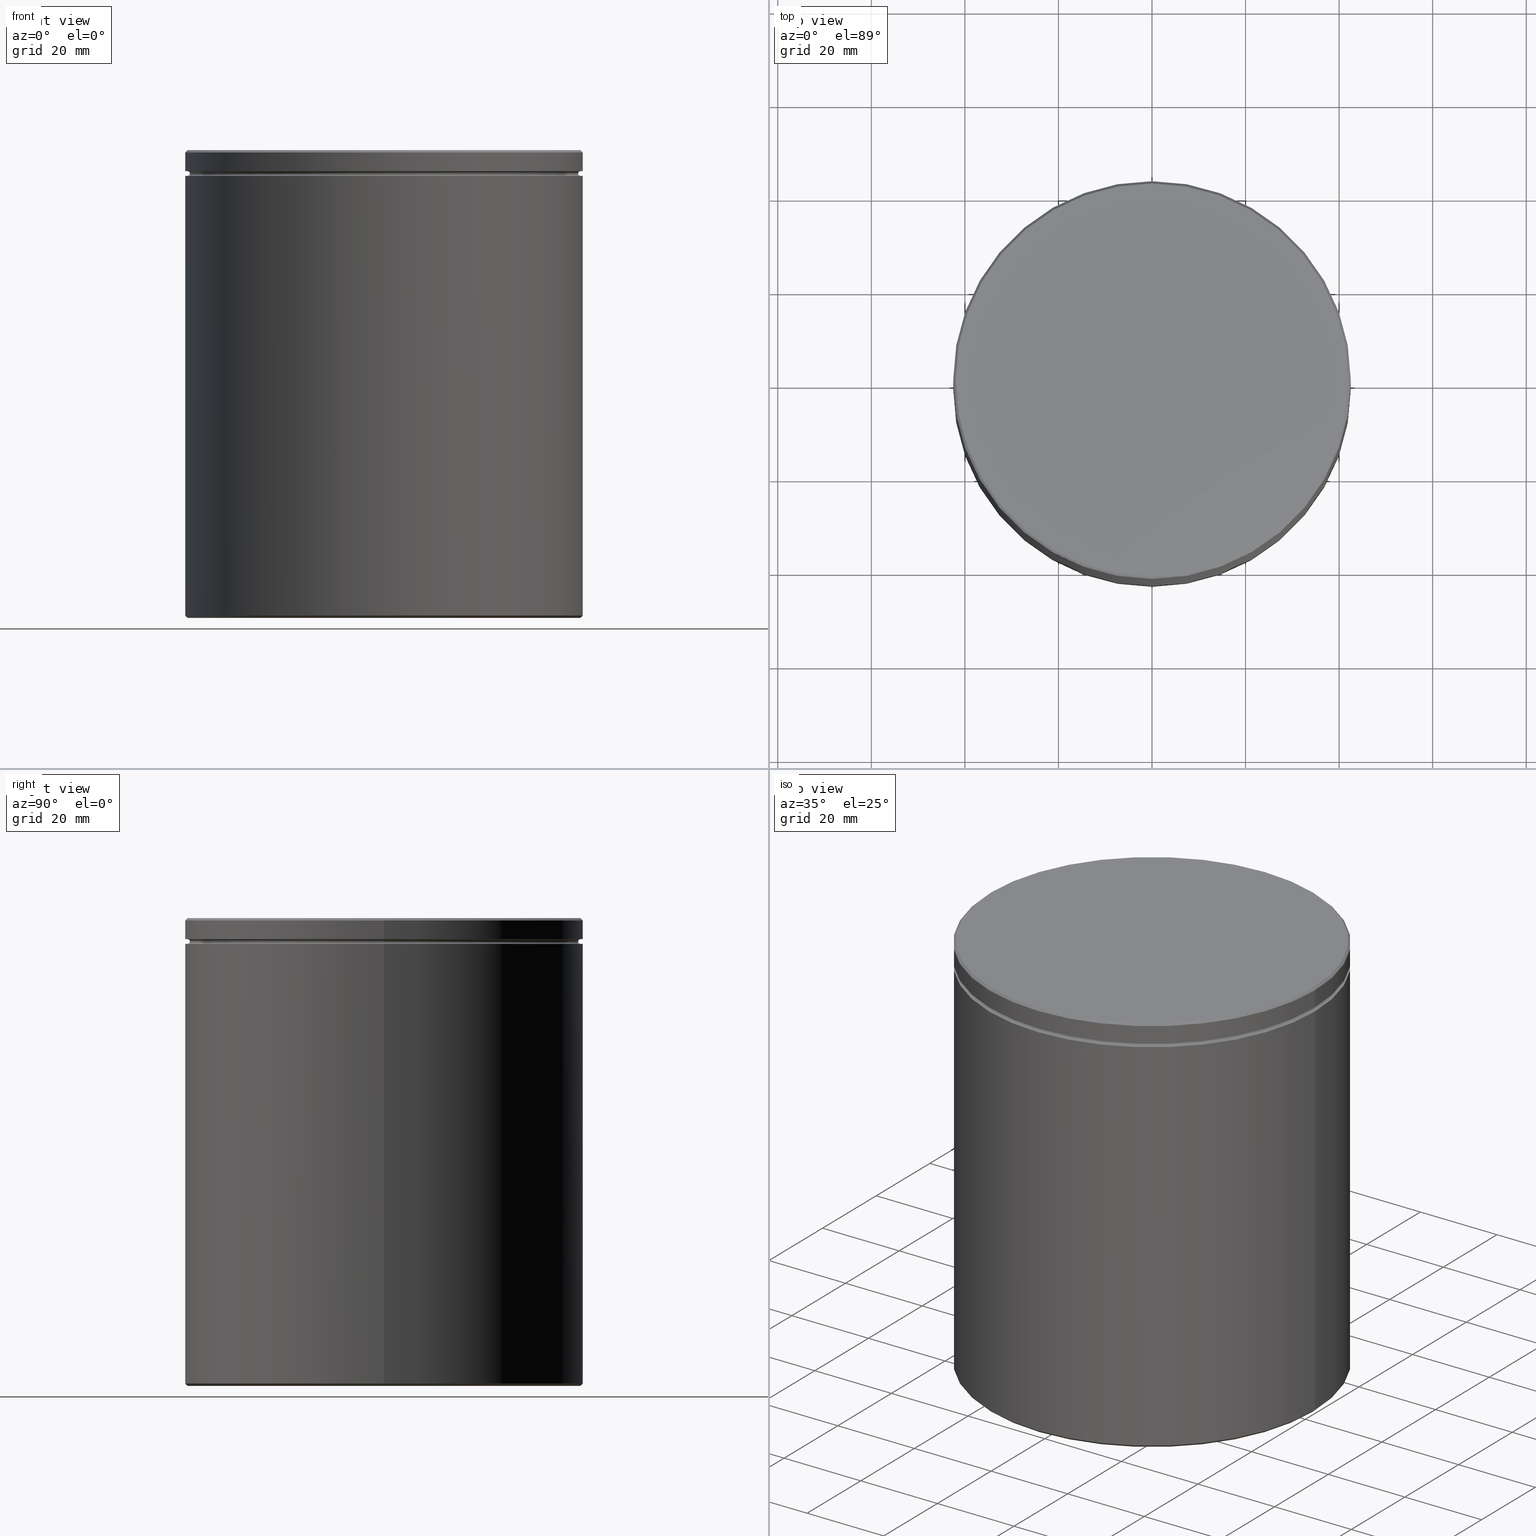
[diagram: canonical four-view strip — front | top / right | iso, engineering-drawing reading convention]
A machine part, canonical four-view strip (front | top / right | iso — engineering-drawing reading convention). The complete STEP part file that produces these views, byte-faithful:
ISO-10303-21;
HEADER;
FILE_DESCRIPTION (( 'STEP AP203' ),
    '1' );
FILE_NAME ('dbdf.STEP',
    '2024-01-02T17:53:13',
    ( '' ),
    ( '' ),
    'SwSTEP 2.0',
    'SolidWorks 2019',
    '' );
FILE_SCHEMA (( 'CONFIG_CONTROL_DESIGN' ));
ENDSEC;

DATA;
#1 = AXIS2_PLACEMENT_3D ( 'NONE', #164, #332, #74 ) ;
#2 = CONICAL_SURFACE ( 'NONE', #1, 42.50000000000000000, 0.7853981633974552734 ) ;
#3 = DIRECTION ( 'NONE',  ( 1.000000000000000000, 0.000000000000000000, 0.000000000000000000 ) ) ;
#4 = EDGE_LOOP ( 'NONE', ( #251, #79, #423, #489 ) ) ;
#5 = CARTESIAN_POINT ( 'NONE',  ( 0.000000000000000000, 41.50000000000000000, -5.500000000000000000 ) ) ;
#6 = ORIENTED_EDGE ( 'NONE', *, *, #15, .T. ) ;
#7 = CARTESIAN_POINT ( 'NONE',  ( 42.00000000000000000, 5.143516556418883322E-15, -4.500000000000000888 ) ) ;
#8 = VERTEX_POINT ( 'NONE', #397 ) ;
#9 = ADVANCED_FACE ( 'NONE', ( #349 ), #153, .F. ) ;
#10 = AXIS2_PLACEMENT_3D ( 'NONE', #52, #41, #183 ) ;
#11 = AXIS2_PLACEMENT_3D ( 'NONE', #284, #497, #61 ) ;
#12 = DIRECTION ( 'NONE',  ( -0.7071067811865524577, 0.000000000000000000, -0.7071067811865426878 ) ) ;
#13 = VERTEX_POINT ( 'NONE', #486 ) ;
#14 = CARTESIAN_POINT ( 'NONE',  ( 31.50000000000000000, 3.857637417314162689E-15, -100.0000000000000000 ) ) ;
#15 = EDGE_CURVE ( 'NONE', #50, #303, #260, .T. ) ;
#16 = CYLINDRICAL_SURFACE ( 'NONE', #45, 42.50000000000000000 ) ;
#17 = DIRECTION ( 'NONE',  ( 0.000000000000000000, 0.000000000000000000, -1.000000000000000000 ) ) ;
#18 = DIRECTION ( 'NONE',  ( -1.000000000000000000, 0.000000000000000000, 0.000000000000000000 ) ) ;
#19 = CARTESIAN_POINT ( 'NONE',  ( 0.000000000000000000, 0.000000000000000000, -99.49999999999997158 ) ) ;
#20 = CIRCLE ( 'NONE', #100, 0.5000000000000004441 ) ;
#21 = DIRECTION ( 'NONE',  ( 1.000000000000000000, 0.000000000000000000, 0.000000000000000000 ) ) ;
#22 = APPROVAL_STATUS ( 'not_yet_approved' ) ;
#23 = VERTEX_POINT ( 'NONE', #241 ) ;
#24 = AXIS2_PLACEMENT_3D ( 'NONE', #367, #103, #18 ) ;
#25 = DIRECTION ( 'NONE',  ( 0.000000000000000000, 0.000000000000000000, -1.000000000000000000 ) ) ;
#26 = CALENDAR_DATE ( 2024, 2, 1 ) ;
#27 = ORIENTED_EDGE ( 'NONE', *, *, #281, .F. ) ;
#28 = CARTESIAN_POINT ( 'NONE',  ( 0.000000000000000000, 0.000000000000000000, -4.500000000000000888 ) ) ;
#29 = ADVANCED_FACE ( 'NONE', ( #495 ), #444, .T. ) ;
#30 = COORDINATED_UNIVERSAL_TIME_OFFSET ( 1, 0, .AHEAD. ) ;
#31 = ORIENTED_EDGE ( 'NONE', *, *, #296, .F. ) ;
#32 = EDGE_CURVE ( 'NONE', #294, #339, #448, .T. ) ;
#33 = DIRECTION ( 'NONE',  ( -0.000000000000000000, -0.000000000000000000, 1.000000000000000000 ) ) ;
#34 = CIRCLE ( 'NONE', #234, 42.00000000000000000 ) ;
#35 = DIRECTION ( 'NONE',  ( -0.000000000000000000, -0.000000000000000000, 1.000000000000000000 ) ) ;
#36 = DIRECTION ( 'NONE',  ( -0.000000000000000000, -0.000000000000000000, -1.000000000000000000 ) ) ;
#37 = ORIENTED_EDGE ( 'NONE', *, *, #255, .T. ) ;
#38 = EDGE_CURVE ( 'NONE', #516, #23, #322, .T. ) ;
#39 = DIRECTION ( 'NONE',  ( -0.000000000000000000, -0.000000000000000000, 1.000000000000000000 ) ) ;
#40 = ORIENTED_EDGE ( 'NONE', *, *, #506, .F. ) ;
#41 = DIRECTION ( 'NONE',  ( -0.000000000000000000, -1.000000000000000000, -0.000000000000000000 ) ) ;
#42 = APPROVAL ( #139, 'NEUR�EN�' ) ;
#43 = DATE_AND_TIME ( #564, #283 ) ;
#44 = ORIENTED_EDGE ( 'NONE', *, *, #182, .T. ) ;
#45 = AXIS2_PLACEMENT_3D ( 'NONE', #363, #35, #21 ) ;
#46 = CARTESIAN_POINT ( 'NONE',  ( 42.00000000000000000, 0.000000000000000000, -4.999999999999999112 ) ) ;
#47 = SECURITY_CLASSIFICATION_LEVEL ( 'unclassified' ) ;
#48 = DIRECTION ( 'NONE',  ( 1.000000000000000000, 0.000000000000000000, 0.000000000000000000 ) ) ;
#49 = DIRECTION ( 'NONE',  ( 1.000000000000000000, 0.000000000000000000, 0.000000000000000000 ) ) ;
#50 = VERTEX_POINT ( 'NONE', #197 ) ;
#51 = ADVANCED_FACE ( 'NONE', ( #408 ), #361, .F. ) ;
#52 = CARTESIAN_POINT ( 'NONE',  ( -42.00000000000000000, 0.000000000000000000, -5.000000000000000888 ) ) ;
#53 = EDGE_LOOP ( 'NONE', ( #291, #178, #481, #66 ) ) ;
#54 = CIRCLE ( 'NONE', #128, 41.50000000000000000 ) ;
#55 = VECTOR ( 'NONE', #412, 1000.000000000000000 ) ;
#56 = LINE ( 'NONE', #358, #445 ) ;
#57 = DIRECTION ( 'NONE',  ( -1.000000000000000000, 0.000000000000000000, 0.000000000000000000 ) ) ;
#58 = CC_DESIGN_PERSON_AND_ORGANIZATION_ASSIGNMENT ( #161, #333, ( #110 ) ) ;
#59 = DIRECTION ( 'NONE',  ( -1.000000000000000000, 0.000000000000000000, 0.000000000000000000 ) ) ;
#60 = CARTESIAN_POINT ( 'NONE',  ( 41.99999999999999289, 5.143516556418882533E-15, 0.000000000000000000 ) ) ;
#61 = DIRECTION ( 'NONE',  ( -1.000000000000000000, 0.000000000000000000, 0.000000000000000000 ) ) ;
#62 = DIRECTION ( 'NONE',  ( -0.000000000000000000, -0.000000000000000000, -1.000000000000000000 ) ) ;
#63 = EDGE_CURVE ( 'NONE', #50, #294, #501, .T. ) ;
#64 = DIRECTION ( 'NONE',  ( 1.000000000000000000, 0.000000000000000000, 0.000000000000000000 ) ) ;
#65 = CYLINDRICAL_SURFACE ( 'NONE', #496, 31.50000000000000000 ) ;
#66 = ORIENTED_EDGE ( 'NONE', *, *, #567, .F. ) ;
#67 = AXIS2_PLACEMENT_3D ( 'NONE', #411, #450, #280 ) ;
#68 = CIRCLE ( 'NONE', #187, 42.00000000000000000 ) ;
#69 = FACE_OUTER_BOUND ( 'NONE', #421, .T. ) ;
#70 = CALENDAR_DATE ( 2024, 2, 1 ) ;
#71 = ORIENTED_EDGE ( 'NONE', *, *, #127, .T. ) ;
#72 = AXIS2_PLACEMENT_3D ( 'NONE', #337, #560, #64 ) ;
#73 = EDGE_CURVE ( 'NONE', #315, #245, #99, .T. ) ;
#74 = DIRECTION ( 'NONE',  ( 1.000000000000000000, 0.000000000000000000, 0.000000000000000000 ) ) ;
#75 = CARTESIAN_POINT ( 'NONE',  ( 0.000000000000000000, 0.000000000000000000, -5.500000000000000000 ) ) ;
#76 = EDGE_LOOP ( 'NONE', ( #118, #357, #520, #331 ) ) ;
#77 = CARTESIAN_POINT ( 'NONE',  ( 0.000000000000000000, 0.000000000000000000, -0.5000000000000004441 ) ) ;
#78 = MECHANICAL_CONTEXT ( 'NONE', #356, 'mechanical' ) ;
#79 = ORIENTED_EDGE ( 'NONE', *, *, #354, .F. ) ;
#80 = CARTESIAN_POINT ( 'NONE',  ( 0.000000000000000000, 0.000000000000000000, 0.000000000000000000 ) ) ;
#81 = APPROVAL_DATE_TIME ( #290, #171 ) ;
#82 = ORIENTED_EDGE ( 'NONE', *, *, #73, .T. ) ;
#83 = EDGE_CURVE ( 'NONE', #440, #359, #148, .T. ) ;
#84 = AXIS2_PLACEMENT_3D ( 'NONE', #244, #25, #299 ) ;
#85 = DIRECTION ( 'NONE',  ( -1.000000000000000000, 0.000000000000000000, 0.000000000000000000 ) ) ;
#86 = EDGE_LOOP ( 'NONE', ( #569, #82 ) ) ;
#87 = CARTESIAN_POINT ( 'NONE',  ( 0.000000000000000000, 0.000000000000000000, 0.000000000000000000 ) ) ;
#88 = VERTEX_POINT ( 'NONE', #366 ) ;
#89 = CARTESIAN_POINT ( 'NONE',  ( 0.000000000000000000, 0.000000000000000000, -5.000000000000000888 ) ) ;
#90 = CARTESIAN_POINT ( 'NONE',  ( 0.000000000000000000, 0.000000000000000000, -4.999999999999999112 ) ) ;
#91 = ADVANCED_FACE ( 'NONE', ( #149, #195 ), #324, .T. ) ;
#92 = DIRECTION ( 'NONE',  ( -0.000000000000000000, -0.000000000000000000, 1.000000000000000000 ) ) ;
#93 = EDGE_LOOP ( 'NONE', ( #218, #223, #136, #44 ) ) ;
#94 = DIRECTION ( 'NONE',  ( 1.000000000000000000, 0.000000000000000000, 0.000000000000000000 ) ) ;
#95 = ORIENTED_EDGE ( 'NONE', *, *, #114, .F. ) ;
#96 = DIRECTION ( 'NONE',  ( 1.000000000000000000, 0.000000000000000000, 0.000000000000000000 ) ) ;
#97 = CARTESIAN_POINT ( 'NONE',  ( 0.000000000000000000, 0.000000000000000000, -29.00000000000001066 ) ) ;
#98 = ADVANCED_FACE ( 'NONE', ( #503 ), #107, .T. ) ;
#99 = CIRCLE ( 'NONE', #292, 31.50000000000000000 ) ;
#100 = AXIS2_PLACEMENT_3D ( 'NONE', #189, #404, #464 ) ;
#101 = CIRCLE ( 'NONE', #11, 31.50000000000000000 ) ;
#102 = FACE_OUTER_BOUND ( 'NONE', #405, .T. ) ;
#103 = DIRECTION ( 'NONE',  ( 0.000000000000000000, 0.000000000000000000, -1.000000000000000000 ) ) ;
#104 = DIRECTION ( 'NONE',  ( -0.000000000000000000, -0.000000000000000000, -1.000000000000000000 ) ) ;
#105 = AXIS2_PLACEMENT_3D ( 'NONE', #282, #456, #409 ) ;
#106 = EDGE_CURVE ( 'NONE', #13, #261, #346, .T. ) ;
#107 = CYLINDRICAL_SURFACE ( 'NONE', #105, 42.50000000000000000 ) ;
#108 = DIRECTION ( 'NONE',  ( -1.000000000000000000, 0.000000000000000000, 0.000000000000000000 ) ) ;
#109 = DIRECTION ( 'NONE',  ( 0.000000000000000000, 0.000000000000000000, -1.000000000000000000 ) ) ;
#110 = PRODUCT_DEFINITION_FORMATION_WITH_SPECIFIED_SOURCE ( 'LIBOVOLN�', '', #559, .NOT_KNOWN. ) ;
#111 = DIRECTION ( 'NONE',  ( 1.000000000000000000, 0.000000000000000000, 0.000000000000000000 ) ) ;
#112 = COORDINATED_UNIVERSAL_TIME_OFFSET ( 1, 0, .AHEAD. ) ;
#113 = EDGE_LOOP ( 'NONE', ( #257, #471, #37, #552 ) ) ;
#114 = EDGE_CURVE ( 'NONE', #133, #8, #101, .T. ) ;
#115 = TOROIDAL_SURFACE ( 'NONE', #478, 42.00000000000000000, 0.5000000000000000000 ) ;
#116 = PLANE ( 'NONE',  #84 ) ;
#117 = PERSON_AND_ORGANIZATION_ROLE ( 'design_supplier' ) ;
#118 = ORIENTED_EDGE ( 'NONE', *, *, #517, .F. ) ;
#119 = CARTESIAN_POINT ( 'NONE',  ( 42.50000000000000000, 0.000000000000000000, -5.500000000000000000 ) ) ;
#120 = EDGE_LOOP ( 'NONE', ( #465, #71, #143, #174 ) ) ;
#121 = CARTESIAN_POINT ( 'NONE',  ( 0.000000000000000000, 0.000000000000000000, -5.500000000000000000 ) ) ;
#122 = APPROVAL_PERSON_ORGANIZATION ( #214, #171, #329 ) ;
#123 = DIRECTION ( 'NONE',  ( -1.000000000000000000, 0.000000000000000000, 0.000000000000000000 ) ) ;
#124 = ORIENTED_EDGE ( 'NONE', *, *, #500, .F. ) ;
#125 = ADVANCED_BREP_SHAPE_REPRESENTATION ( 'dbdf', ( #566, #368 ), #473 ) ;
#126 = CARTESIAN_POINT ( 'NONE',  ( 0.000000000000000000, 0.000000000000000000, -29.00000000000001066 ) ) ;
#127 = EDGE_CURVE ( 'NONE', #315, #133, #237, .T. ) ;
#128 = AXIS2_PLACEMENT_3D ( 'NONE', #144, #316, #96 ) ;
#129 = ORIENTED_EDGE ( 'NONE', *, *, #369, .F. ) ;
#130 = CC_DESIGN_PERSON_AND_ORGANIZATION_ASSIGNMENT ( #513, #117, ( #110 ) ) ;
#131 = AXIS2_PLACEMENT_3D ( 'NONE', #191, #147, #319 ) ;
#132 = FACE_OUTER_BOUND ( 'NONE', #272, .T. ) ;
#133 = VERTEX_POINT ( 'NONE', #14 ) ;
#134 = CARTESIAN_POINT ( 'NONE',  ( 0.000000000000000000, 0.000000000000000000, -4.999999999999999112 ) ) ;
#135 = COORDINATED_UNIVERSAL_TIME_OFFSET ( 1, 0, .AHEAD. ) ;
#136 = ORIENTED_EDGE ( 'NONE', *, *, #235, .T. ) ;
#137 = ADVANCED_FACE ( 'NONE', ( #414 ), #396, .T. ) ;
#138 = CARTESIAN_POINT ( 'NONE',  ( -31.50000000000000000, 0.000000000000000000, -29.00000000000001066 ) ) ;
#139 = APPROVAL_STATUS ( 'not_yet_approved' ) ;
#140 = ORIENTED_EDGE ( 'NONE', *, *, #15, .F. ) ;
#141 = CIRCLE ( 'NONE', #213, 31.50000000000000000 ) ;
#142 = CARTESIAN_POINT ( 'NONE',  ( -42.50000000000000000, 5.204748896376250896E-15, 0.000000000000000000 ) ) ;
#143 = ORIENTED_EDGE ( 'NONE', *, *, #114, .T. ) ;
#144 = CARTESIAN_POINT ( 'NONE',  ( 0.000000000000000000, 0.000000000000000000, -4.999999999999999112 ) ) ;
#145 = ADVANCED_FACE ( 'NONE', ( #547, #317 ), #236, .T. ) ;
#146 = ORIENTED_EDGE ( 'NONE', *, *, #83, .F. ) ;
#147 = DIRECTION ( 'NONE',  ( 0.000000000000000000, 0.000000000000000000, -1.000000000000000000 ) ) ;
#148 = CIRCLE ( 'NONE', #179, 42.00000000000000000 ) ;
#149 = FACE_OUTER_BOUND ( 'NONE', #477, .T. ) ;
#150 = DIRECTION ( 'NONE',  ( 0.000000000000000000, 0.000000000000000000, -1.000000000000000000 ) ) ;
#151 = ADVANCED_FACE ( 'NONE', ( #102 ), #16, .T. ) ;
#152 = DIRECTION ( 'NONE',  ( -1.000000000000000000, 0.000000000000000000, 0.000000000000000000 ) ) ;
#153 = TOROIDAL_SURFACE ( 'NONE', #326, 42.00000000000000000, 0.5000000000000000000 ) ;
#154 = DIRECTION ( 'NONE',  ( 1.000000000000000000, 0.000000000000000000, 0.000000000000000000 ) ) ;
#155 = CYLINDRICAL_SURFACE ( 'NONE', #463, 42.50000000000000000 ) ;
#156 = ADVANCED_FACE ( 'NONE', ( #424 ), #248, .T. ) ;
#157 = PERSON_AND_ORGANIZATION ( #457, #173 ) ;
#158 = CIRCLE ( 'NONE', #340, 42.00000000000000000 ) ;
#159 = CARTESIAN_POINT ( 'NONE',  ( 42.50000000000000000, 0.000000000000000000, -4.500000000000000888 ) ) ;
#160 = APPLICATION_CONTEXT ( 'configuration controlled 3d designs of mechanical parts and assemblies' ) ;
#161 = PERSON_AND_ORGANIZATION ( #457, #173 ) ;
#162 = ORIENTED_EDGE ( 'NONE', *, *, #537, .F. ) ;
#163 = CIRCLE ( 'NONE', #240, 0.5000000000000004441 ) ;
#164 = CARTESIAN_POINT ( 'NONE',  ( 0.000000000000000000, 0.000000000000000000, -99.49999999999997158 ) ) ;
#165 =( LENGTH_UNIT ( ) NAMED_UNIT ( * ) SI_UNIT ( .MILLI., .METRE. ) );
#166 = ORIENTED_EDGE ( 'NONE', *, *, #443, .F. ) ;
#167 = CC_DESIGN_SECURITY_CLASSIFICATION ( #531, ( #110 ) ) ;
#168 = CARTESIAN_POINT ( 'NONE',  ( 0.000000000000000000, 0.000000000000000000, -99.49999999999997158 ) ) ;
#169 = CARTESIAN_POINT ( 'NONE',  ( 0.000000000000000000, 0.000000000000000000, 0.000000000000000000 ) ) ;
#170 = EDGE_LOOP ( 'NONE', ( #31, #347, #557, #146 ) ) ;
#171 = APPROVAL ( #22, 'NEUR�EN�' ) ;
#172 = DIRECTION ( 'NONE',  ( -0.000000000000000000, -0.000000000000000000, -1.000000000000000000 ) ) ;
#173 = ORGANIZATION ( 'NEUR�EN�', 'NEUR�EN�', '' ) ;
#174 = ORIENTED_EDGE ( 'NONE', *, *, #378, .F. ) ;
#175 = AXIS2_PLACEMENT_3D ( 'NONE', #469, #212, #203 ) ;
#176 = DIRECTION ( 'NONE',  ( 1.000000000000000000, 0.000000000000000000, 0.000000000000000000 ) ) ;
#177 = CIRCLE ( 'NONE', #247, 42.50000000000000000 ) ;
#178 = ORIENTED_EDGE ( 'NONE', *, *, #400, .F. ) ;
#179 = AXIS2_PLACEMENT_3D ( 'NONE', #449, #193, #370 ) ;
#180 = DIRECTION ( 'NONE',  ( -1.000000000000000000, 0.000000000000000000, 0.000000000000000000 ) ) ;
#181 = EDGE_LOOP ( 'NONE', ( #27, #95 ) ) ;
#182 = EDGE_CURVE ( 'NONE', #23, #334, #498, .T. ) ;
#183 = DIRECTION ( 'NONE',  ( 0.000000000000000000, 0.000000000000000000, -1.000000000000000000 ) ) ;
#184 = ORIENTED_EDGE ( 'NONE', *, *, #243, .T. ) ;
#185 = DIRECTION ( 'NONE',  ( -0.000000000000000000, -0.000000000000000000, 1.000000000000000000 ) ) ;
#186 = ORIENTED_EDGE ( 'NONE', *, *, #221, .T. ) ;
#187 = AXIS2_PLACEMENT_3D ( 'NONE', #377, #252, #422 ) ;
#188 = VECTOR ( 'NONE', #33, 1000.000000000000000 ) ;
#189 = CARTESIAN_POINT ( 'NONE',  ( -42.00000000000000000, 5.143516556418883322E-15, -4.999999999999999112 ) ) ;
#190 = ORIENTED_EDGE ( 'NONE', *, *, #238, .F. ) ;
#191 = CARTESIAN_POINT ( 'NONE',  ( 0.000000000000000000, 42.50000000000000000, -4.500000000000000888 ) ) ;
#192 = CC_DESIGN_APPROVAL ( #263, ( #110 ) ) ;
#193 = DIRECTION ( 'NONE',  ( -0.000000000000000000, -0.000000000000000000, 1.000000000000000000 ) ) ;
#194 = CIRCLE ( 'NONE', #502, 41.50000000000000000 ) ;
#195 = FACE_BOUND ( 'NONE', #181, .T. ) ;
#196 = ADVANCED_FACE ( 'NONE', ( #249 ), #116, .T. ) ;
#197 = CARTESIAN_POINT ( 'NONE',  ( 42.50000000000000000, 0.000000000000000000, -99.49999999999997158 ) ) ;
#198 = DIRECTION ( 'NONE',  ( -0.000000000000000000, -0.000000000000000000, 1.000000000000000000 ) ) ;
#199 = AXIS2_PLACEMENT_3D ( 'NONE', #239, #17, #499 ) ;
#200 = TOROIDAL_SURFACE ( 'NONE', #233, 42.00000000000000000, 0.5000000000000000000 ) ;
#201 = PRODUCT_DEFINITION ( 'NEZN�M�', '', #110, #226 ) ;
#202 = VECTOR ( 'NONE', #242, 1000.000000000000000 ) ;
#203 = DIRECTION ( 'NONE',  ( -1.000000000000000000, 0.000000000000000000, 0.000000000000000000 ) ) ;
#204 = DATE_TIME_ROLE ( 'creation_date' ) ;
#205 = ORIENTED_EDGE ( 'NONE', *, *, #558, .F. ) ;
#206 = CARTESIAN_POINT ( 'NONE',  ( 0.000000000000000000, 0.000000000000000000, 0.000000000000000000 ) ) ;
#207 = PERSON_AND_ORGANIZATION_ROLE ( 'design_owner' ) ;
#208 = VERTEX_POINT ( 'NONE', #159 ) ;
#209 = LOCAL_TIME ( 18, 53, 13.00000000000000000, #112 ) ;
#210 = DIRECTION ( 'NONE',  ( -0.000000000000000000, -0.000000000000000000, 1.000000000000000000 ) ) ;
#211 = CIRCLE ( 'NONE', #301, 41.99999999999999289 ) ;
#212 = DIRECTION ( 'NONE',  ( 0.000000000000000000, 0.000000000000000000, -1.000000000000000000 ) ) ;
#213 = AXIS2_PLACEMENT_3D ( 'NONE', #553, #472, #335 ) ;
#214 = PERSON_AND_ORGANIZATION ( #457, #173 ) ;
#215 = EDGE_LOOP ( 'NONE', ( #510, #274, #514, #166 ) ) ;
#216 = ADVANCED_FACE ( 'NONE', ( #69 ), #2, .T. ) ;
#217 = CARTESIAN_POINT ( 'NONE',  ( -42.50000000000000000, 5.204748896376250896E-15, -99.49999999999997158 ) ) ;
#218 = ORIENTED_EDGE ( 'NONE', *, *, #429, .F. ) ;
#219 = PLANE ( 'NONE',  #466 ) ;
#220 = ORIENTED_EDGE ( 'NONE', *, *, #537, .T. ) ;
#221 = EDGE_CURVE ( 'NONE', #261, #50, #458, .T. ) ;
#222 = CYLINDRICAL_SURFACE ( 'NONE', #394, 42.50000000000000000 ) ;
#223 = ORIENTED_EDGE ( 'NONE', *, *, #327, .T. ) ;
#224 = VECTOR ( 'NONE', #62, 1000.000000000000000 ) ;
#225 = FACE_OUTER_BOUND ( 'NONE', #170, .T. ) ;
#226 = DESIGN_CONTEXT ( 'detailed design', #160, 'design' ) ;
#227 = PERSON_AND_ORGANIZATION ( #457, #173 ) ;
#228 = EDGE_LOOP ( 'NONE', ( #300, #426 ) ) ;
#229 = DIRECTION ( 'NONE',  ( 0.000000000000000000, 0.000000000000000000, -1.000000000000000000 ) ) ;
#230 = ORIENTED_EDGE ( 'NONE', *, *, #451, .F. ) ;
#231 = CARTESIAN_POINT ( 'NONE',  ( -42.50000000000000000, 5.204748896376250896E-15, -4.500000000000000888 ) ) ;
#232 = ORIENTED_EDGE ( 'NONE', *, *, #527, .T. ) ;
#233 = AXIS2_PLACEMENT_3D ( 'NONE', #89, #563, #342 ) ;
#234 = AXIS2_PLACEMENT_3D ( 'NONE', #121, #293, #427 ) ;
#235 = EDGE_CURVE ( 'NONE', #208, #23, #474, .T. ) ;
#236 = PLANE ( 'NONE',  #131 ) ;
#237 = LINE ( 'NONE', #540, #224 ) ;
#238 = EDGE_CURVE ( 'NONE', #303, #50, #318, .T. ) ;
#239 = CARTESIAN_POINT ( 'NONE',  ( 0.000000000000000000, 42.50000000000000000, -100.0000000000000000 ) ) ;
#240 = AXIS2_PLACEMENT_3D ( 'NONE', #46, #270, #229 ) ;
#241 = CARTESIAN_POINT ( 'NONE',  ( 42.50000000000000000, 0.000000000000000000, -0.5000000000000004441 ) ) ;
#242 = DIRECTION ( 'NONE',  ( 0.7071067811865524577, 8.659560562354994488E-17, -0.7071067811865426878 ) ) ;
#243 = EDGE_CURVE ( 'NONE', #380, #88, #34, .T. ) ;
#244 = CARTESIAN_POINT ( 'NONE',  ( 0.000000000000000000, 0.000000000000000000, -29.00000000000001066 ) ) ;
#245 = VERTEX_POINT ( 'NONE', #330 ) ;
#246 = VECTOR ( 'NONE', #505, 1000.000000000000000 ) ;
#247 = AXIS2_PLACEMENT_3D ( 'NONE', #375, #551, #416 ) ;
#248 = CONICAL_SURFACE ( 'NONE', #175, 41.99999999999999289, 0.7853981633974552734 ) ;
#249 = FACE_OUTER_BOUND ( 'NONE', #86, .T. ) ;
#250 = DATE_AND_TIME ( #287, #288 ) ;
#251 = ORIENTED_EDGE ( 'NONE', *, *, #127, .F. ) ;
#252 = DIRECTION ( 'NONE',  ( -0.000000000000000000, -0.000000000000000000, 1.000000000000000000 ) ) ;
#253 = ORIENTED_EDGE ( 'NONE', *, *, #182, .F. ) ;
#254 = FACE_OUTER_BOUND ( 'NONE', #215, .T. ) ;
#255 = EDGE_CURVE ( 'NONE', #334, #23, #504, .T. ) ;
#256 = PERSON_AND_ORGANIZATION ( #457, #173 ) ;
#257 = ORIENTED_EDGE ( 'NONE', *, *, #369, .T. ) ;
#258 = AXIS2_PLACEMENT_3D ( 'NONE', #87, #390, #94 ) ;
#259 = DIRECTION ( 'NONE',  ( -1.224646799147353207E-16, 1.000000000000000000, 0.000000000000000000 ) ) ;
#260 = CIRCLE ( 'NONE', #373, 42.50000000000000000 ) ;
#261 = VERTEX_POINT ( 'NONE', #550 ) ;
#262 = ORIENTED_EDGE ( 'NONE', *, *, #506, .T. ) ;
#263 = APPROVAL ( #509, 'NEUR�EN�' ) ;
#264 = CARTESIAN_POINT ( 'NONE',  ( -42.00000000000000000, 0.000000000000000000, -4.500000000000000888 ) ) ;
#265 = ORIENTED_EDGE ( 'NONE', *, *, #106, .T. ) ;
#266 = AXIS2_PLACEMENT_3D ( 'NONE', #437, #433, #176 ) ;
#267 = DIRECTION ( 'NONE',  ( 1.000000000000000000, 0.000000000000000000, 0.000000000000000000 ) ) ;
#268 = LOCAL_TIME ( 18, 53, 13.00000000000000000, #135 ) ;
#269 = ORIENTED_EDGE ( 'NONE', *, *, #32, .F. ) ;
#270 = DIRECTION ( 'NONE',  ( 0.000000000000000000, -1.000000000000000000, 0.000000000000000000 ) ) ;
#271 = UNCERTAINTY_MEASURE_WITH_UNIT (LENGTH_MEASURE( 1.000000000000000082E-05 ), #165, 'distance_accuracy_value', 'NONE');
#272 = EDGE_LOOP ( 'NONE', ( #383, #565 ) ) ;
#273 = CARTESIAN_POINT ( 'NONE',  ( 0.000000000000000000, 0.000000000000000000, -4.999999999999999112 ) ) ;
#274 = ORIENTED_EDGE ( 'NONE', *, *, #296, .T. ) ;
#275 = ADVANCED_FACE ( 'NONE', ( #556 ), #155, .T. ) ;
#276 = LINE ( 'NONE', #446, #279 ) ;
#277 = AXIS2_PLACEMENT_3D ( 'NONE', #97, #104, #541 ) ;
#278 = CARTESIAN_POINT ( 'NONE',  ( 0.000000000000000000, 0.000000000000000000, -99.49999999999997158 ) ) ;
#279 = VECTOR ( 'NONE', #12, 1000.000000000000000 ) ;
#280 = DIRECTION ( 'NONE',  ( 1.000000000000000000, 0.000000000000000000, 0.000000000000000000 ) ) ;
#281 = EDGE_CURVE ( 'NONE', #8, #133, #141, .T. ) ;
#282 = CARTESIAN_POINT ( 'NONE',  ( 0.000000000000000000, 0.000000000000000000, 0.000000000000000000 ) ) ;
#283 = LOCAL_TIME ( 18, 53, 13.00000000000000000, #310 ) ;
#284 = CARTESIAN_POINT ( 'NONE',  ( 0.000000000000000000, 0.000000000000000000, -100.0000000000000000 ) ) ;
#285 = CARTESIAN_POINT ( 'NONE',  ( 42.50000000000000000, 0.000000000000000000, 0.000000000000000000 ) ) ;
#286 = DIRECTION ( 'NONE',  ( -0.000000000000000000, -0.000000000000000000, 1.000000000000000000 ) ) ;
#287 = CALENDAR_DATE ( 2024, 2, 1 ) ;
#288 = LOCAL_TIME ( 18, 53, 13.00000000000000000, #30 ) ;
#289 = DIRECTION ( 'NONE',  ( 0.000000000000000000, 0.000000000000000000, -1.000000000000000000 ) ) ;
#290 = DATE_AND_TIME ( #26, #493 ) ;
#291 = ORIENTED_EDGE ( 'NONE', *, *, #542, .F. ) ;
#292 = AXIS2_PLACEMENT_3D ( 'NONE', #544, #447, #152 ) ;
#293 = DIRECTION ( 'NONE',  ( 0.000000000000000000, 0.000000000000000000, -1.000000000000000000 ) ) ;
#294 = VERTEX_POINT ( 'NONE', #119 ) ;
#295 = CC_DESIGN_APPROVAL ( #42, ( #531 ) ) ;
#296 = EDGE_CURVE ( 'NONE', #428, #440, #406, .T. ) ;
#297 = DIRECTION ( 'NONE',  ( -0.000000000000000000, -0.000000000000000000, 1.000000000000000000 ) ) ;
#298 = ORIENTED_EDGE ( 'NONE', *, *, #63, .F. ) ;
#299 = DIRECTION ( 'NONE',  ( -1.000000000000000000, 0.000000000000000000, -0.000000000000000000 ) ) ;
#300 = ORIENTED_EDGE ( 'NONE', *, *, #32, .T. ) ;
#301 = AXIS2_PLACEMENT_3D ( 'NONE', #348, #185, #355 ) ;
#302 = CARTESIAN_POINT ( 'NONE',  ( 42.00000000000000000, 0.000000000000000000, -5.500000000000000000 ) ) ;
#303 = VERTEX_POINT ( 'NONE', #217 ) ;
#304 = EDGE_CURVE ( 'NONE', #530, #516, #455, .T. ) ;
#305 = FACE_OUTER_BOUND ( 'NONE', #53, .T. ) ;
#306 = ORIENTED_EDGE ( 'NONE', *, *, #451, .T. ) ;
#307 = PRODUCT_DEFINITION_SHAPE ( 'NONE', 'NONE',  #201 ) ;
#308 = DIRECTION ( 'NONE',  ( -0.000000000000000000, -0.000000000000000000, 1.000000000000000000 ) ) ;
#309 = DIRECTION ( 'NONE',  ( -0.000000000000000000, -0.000000000000000000, 1.000000000000000000 ) ) ;
#310 = COORDINATED_UNIVERSAL_TIME_OFFSET ( 1, 0, .AHEAD. ) ;
#311 = ORIENTED_EDGE ( 'NONE', *, *, #567, .T. ) ;
#312 = ADVANCED_FACE ( 'NONE', ( #254 ), #479, .F. ) ;
#313 = DIRECTION ( 'NONE',  ( -0.000000000000000000, -0.000000000000000000, 1.000000000000000000 ) ) ;
#314 = DATE_AND_TIME ( #529, #268 ) ;
#315 = VERTEX_POINT ( 'NONE', #328 ) ;
#316 = DIRECTION ( 'NONE',  ( -0.000000000000000000, -0.000000000000000000, 1.000000000000000000 ) ) ;
#317 = FACE_OUTER_BOUND ( 'NONE', #533, .T. ) ;
#318 = CIRCLE ( 'NONE', #321, 42.50000000000000000 ) ;
#319 = DIRECTION ( 'NONE',  ( -1.000000000000000000, 0.000000000000000000, -0.000000000000000000 ) ) ;
#320 = EDGE_CURVE ( 'NONE', #359, #440, #68, .T. ) ;
#321 = AXIS2_PLACEMENT_3D ( 'NONE', #168, #286, #108 ) ;
#322 = LINE ( 'NONE', #60, #202 ) ;
#323 = DIRECTION ( 'NONE',  ( -0.000000000000000000, -0.000000000000000000, 1.000000000000000000 ) ) ;
#324 = PLANE ( 'NONE',  #199 ) ;
#325 = CIRCLE ( 'NONE', #403, 41.99999999999996447 ) ;
#326 = AXIS2_PLACEMENT_3D ( 'NONE', #90, #438, #48 ) ;
#327 = EDGE_CURVE ( 'NONE', #399, #208, #362, .T. ) ;
#328 = CARTESIAN_POINT ( 'NONE',  ( 31.50000000000000000, 3.857637417314162689E-15, -29.00000000000001066 ) ) ;
#329 = APPROVAL_ROLE ( '' ) ;
#330 = CARTESIAN_POINT ( 'NONE',  ( -31.50000000000000000, 0.000000000000000000, -29.00000000000001066 ) ) ;
#331 = ORIENTED_EDGE ( 'NONE', *, *, #475, .F. ) ;
#332 = DIRECTION ( 'NONE',  ( -0.000000000000000000, -0.000000000000000000, 1.000000000000000000 ) ) ;
#333 = PERSON_AND_ORGANIZATION_ROLE ( 'creator' ) ;
#334 = VERTEX_POINT ( 'NONE', #525 ) ;
#335 = DIRECTION ( 'NONE',  ( -1.000000000000000000, 0.000000000000000000, 0.000000000000000000 ) ) ;
#336 = ORIENTED_EDGE ( 'NONE', *, *, #527, .F. ) ;
#337 = CARTESIAN_POINT ( 'NONE',  ( 0.000000000000000000, 0.000000000000000000, -0.5000000000000004441 ) ) ;
#338 = APPLICATION_PROTOCOL_DEFINITION ( 'international standard', 'config_control_design', 1994, #356 ) ;
#339 = VERTEX_POINT ( 'NONE', #490 ) ;
#340 = AXIS2_PLACEMENT_3D ( 'NONE', #75, #109, #561 ) ;
#341 = ADVANCED_FACE ( 'NONE', ( #305 ), #115, .F. ) ;
#342 = DIRECTION ( 'NONE',  ( -1.000000000000000000, 0.000000000000000000, 0.000000000000000000 ) ) ;
#343 = AXIS2_PLACEMENT_3D ( 'NONE', #77, #515, #415 ) ;
#344 = VECTOR ( 'NONE', #172, 1000.000000000000000 ) ;
#345 = CARTESIAN_POINT ( 'NONE',  ( 0.000000000000000000, 0.000000000000000000, 0.000000000000000000 ) ) ;
#346 = CIRCLE ( 'NONE', #393, 41.99999999999996447 ) ;
#347 = ORIENTED_EDGE ( 'NONE', *, *, #400, .T. ) ;
#348 = CARTESIAN_POINT ( 'NONE',  ( 0.000000000000000000, 0.000000000000000000, 0.000000000000000000 ) ) ;
#349 = FACE_OUTER_BOUND ( 'NONE', #76, .T. ) ;
#350 = APPROVAL_PERSON_ORGANIZATION ( #227, #42, #488 ) ;
#351 = LINE ( 'NONE', #441, #372 ) ;
#352 = SHAPE_DEFINITION_REPRESENTATION ( #307, #125 ) ;
#353 = ORIENTED_EDGE ( 'NONE', *, *, #83, .T. ) ;
#354 = EDGE_CURVE ( 'NONE', #245, #315, #524, .T. ) ;
#355 = DIRECTION ( 'NONE',  ( 1.000000000000000000, 0.000000000000000000, 0.000000000000000000 ) ) ;
#356 = APPLICATION_CONTEXT ( 'configuration controlled 3d designs of mechanical parts and assemblies' ) ;
#357 = ORIENTED_EDGE ( 'NONE', *, *, #542, .T. ) ;
#358 = CARTESIAN_POINT ( 'NONE',  ( -42.50000000000000000, 5.204748896376250896E-15, -99.49999999999997158 ) ) ;
#359 = VERTEX_POINT ( 'NONE', #264 ) ;
#360 = CC_DESIGN_DATE_AND_TIME_ASSIGNMENT ( #250, #204, ( #201 ) ) ;
#361 = CYLINDRICAL_SURFACE ( 'NONE', #277, 31.50000000000000000 ) ;
#362 = CIRCLE ( 'NONE', #384, 42.50000000000000000 ) ;
#363 = CARTESIAN_POINT ( 'NONE',  ( 0.000000000000000000, 0.000000000000000000, 0.000000000000000000 ) ) ;
#364 = CC_DESIGN_DATE_AND_TIME_ASSIGNMENT ( #43, #401, ( #531 ) ) ;
#365 = CLOSED_SHELL ( 'NONE', ( #312, #9, #137, #29, #51, #275, #413, #91, #436, #98, #145, #418, #151, #545, #196, #156, #216, #341, #484 ) ) ;
#366 = CARTESIAN_POINT ( 'NONE',  ( -42.00000000000000000, 5.143516556418883322E-15, -5.500000000000000000 ) ) ;
#367 = CARTESIAN_POINT ( 'NONE',  ( 0.000000000000000000, 0.000000000000000000, 0.000000000000000000 ) ) ;
#368 = AXIS2_PLACEMENT_3D ( 'NONE', #169, #371, #154 ) ;
#369 = EDGE_CURVE ( 'NONE', #208, #399, #512, .T. ) ;
#370 = DIRECTION ( 'NONE',  ( -1.000000000000000000, 0.000000000000000000, 0.000000000000000000 ) ) ;
#371 = DIRECTION ( 'NONE',  ( 0.000000000000000000, 0.000000000000000000, 1.000000000000000000 ) ) ;
#372 = VECTOR ( 'NONE', #92, 1000.000000000000000 ) ;
#373 = AXIS2_PLACEMENT_3D ( 'NONE', #19, #323, #57 ) ;
#374 = CARTESIAN_POINT ( 'NONE',  ( 42.50000000000000000, 0.000000000000000000, 0.000000000000000000 ) ) ;
#375 = CARTESIAN_POINT ( 'NONE',  ( 0.000000000000000000, 0.000000000000000000, -5.500000000000000000 ) ) ;
#376 = EDGE_LOOP ( 'NONE', ( #184, #311 ) ) ;
#377 = CARTESIAN_POINT ( 'NONE',  ( 0.000000000000000000, 0.000000000000000000, -4.500000000000000888 ) ) ;
#378 = EDGE_CURVE ( 'NONE', #245, #8, #487, .T. ) ;
#379 = APPROVAL_DATE_TIME ( #420, #263 ) ;
#380 = VERTEX_POINT ( 'NONE', #302 ) ;
#381 = DIRECTION ( 'NONE',  ( 1.000000000000000000, 0.000000000000000000, 0.000000000000000000 ) ) ;
#382 =( NAMED_UNIT ( * ) SI_UNIT ( $, .STERADIAN. ) SOLID_ANGLE_UNIT ( ) );
#383 = ORIENTED_EDGE ( 'NONE', *, *, #304, .T. ) ;
#384 = AXIS2_PLACEMENT_3D ( 'NONE', #28, #210, #381 ) ;
#385 = CARTESIAN_POINT ( 'NONE',  ( 42.50000000000000000, 0.000000000000000000, -99.49999999999997158 ) ) ;
#386 = CARTESIAN_POINT ( 'NONE',  ( 0.000000000000000000, 0.000000000000000000, -29.00000000000001066 ) ) ;
#387 = ORIENTED_EDGE ( 'NONE', *, *, #238, .T. ) ;
#388 = DIRECTION ( 'NONE',  ( 1.000000000000000000, 0.000000000000000000, 0.000000000000000000 ) ) ;
#389 = EDGE_LOOP ( 'NONE', ( #124, #492, #435, #162 ) ) ;
#390 = DIRECTION ( 'NONE',  ( 0.000000000000000000, -0.000000000000000000, 1.000000000000000000 ) ) ;
#391 = PERSON_AND_ORGANIZATION_ROLE ( 'classification_officer' ) ;
#392 = EDGE_LOOP ( 'NONE', ( #6, #262, #269, #298 ) ) ;
#393 = AXIS2_PLACEMENT_3D ( 'NONE', #543, #150, #59 ) ;
#394 = AXIS2_PLACEMENT_3D ( 'NONE', #345, #309, #482 ) ;
#395 = DIRECTION ( 'NONE',  ( 0.000000000000000000, 0.000000000000000000, -1.000000000000000000 ) ) ;
#396 = CONICAL_SURFACE ( 'NONE', #523, 42.50000000000000000, 0.7853981633974552734 ) ;
#397 = CARTESIAN_POINT ( 'NONE',  ( -31.50000000000000000, 0.000000000000000000, -100.0000000000000000 ) ) ;
#398 = CARTESIAN_POINT ( 'NONE',  ( 41.50000000000000000, 0.000000000000000000, -4.999999999999999112 ) ) ;
#399 = VERTEX_POINT ( 'NONE', #231 ) ;
#400 = EDGE_CURVE ( 'NONE', #428, #562, #194, .T. ) ;
#401 = DATE_TIME_ROLE ( 'classification_date' ) ;
#402 = ORIENTED_EDGE ( 'NONE', *, *, #221, .F. ) ;
#403 = AXIS2_PLACEMENT_3D ( 'NONE', #528, #395, #180 ) ;
#404 = DIRECTION ( 'NONE',  ( 1.224646799147353207E-16, 1.000000000000000000, 0.000000000000000000 ) ) ;
#405 = EDGE_LOOP ( 'NONE', ( #40, #387, #483, #205 ) ) ;
#406 = CIRCLE ( 'NONE', #467, 0.5000000000000004441 ) ;
#407 = CC_DESIGN_PERSON_AND_ORGANIZATION_ASSIGNMENT ( #256, #207, ( #559 ) ) ;
#408 = FACE_OUTER_BOUND ( 'NONE', #120, .T. ) ;
#409 = DIRECTION ( 'NONE',  ( 1.000000000000000000, 0.000000000000000000, 0.000000000000000000 ) ) ;
#410 = CIRCLE ( 'NONE', #10, 0.5000000000000004441 ) ;
#411 = CARTESIAN_POINT ( 'NONE',  ( 0.000000000000000000, 0.000000000000000000, -5.500000000000000000 ) ) ;
#412 = DIRECTION ( 'NONE',  ( -0.000000000000000000, -0.000000000000000000, 1.000000000000000000 ) ) ;
#413 = ADVANCED_FACE ( 'NONE', ( #430 ), #222, .T. ) ;
#414 = FACE_OUTER_BOUND ( 'NONE', #555, .T. ) ;
#415 = DIRECTION ( 'NONE',  ( 1.000000000000000000, 0.000000000000000000, 0.000000000000000000 ) ) ;
#416 = DIRECTION ( 'NONE',  ( 1.000000000000000000, 0.000000000000000000, 0.000000000000000000 ) ) ;
#417 = ORIENTED_EDGE ( 'NONE', *, *, #106, .F. ) ;
#418 = ADVANCED_FACE ( 'NONE', ( #485, #480 ), #219, .T. ) ;
#419 = DIRECTION ( 'NONE',  ( -0.000000000000000000, -0.000000000000000000, 1.000000000000000000 ) ) ;
#420 = DATE_AND_TIME ( #70, #209 ) ;
#421 = EDGE_LOOP ( 'NONE', ( #336, #230, #186, #190 ) ) ;
#422 = DIRECTION ( 'NONE',  ( -1.000000000000000000, 0.000000000000000000, 0.000000000000000000 ) ) ;
#423 = ORIENTED_EDGE ( 'NONE', *, *, #378, .T. ) ;
#424 = FACE_OUTER_BOUND ( 'NONE', #539, .T. ) ;
#425 = APPLICATION_PROTOCOL_DEFINITION ( 'international standard', 'config_control_design', 1994, #160 ) ;
#426 = ORIENTED_EDGE ( 'NONE', *, *, #558, .T. ) ;
#427 = DIRECTION ( 'NONE',  ( 1.000000000000000000, 0.000000000000000000, 0.000000000000000000 ) ) ;
#428 = VERTEX_POINT ( 'NONE', #398 ) ;
#429 = EDGE_CURVE ( 'NONE', #399, #334, #351, .T. ) ;
#430 = FACE_OUTER_BOUND ( 'NONE', #113, .T. ) ;
#431 = ORIENTED_EDGE ( 'NONE', *, *, #320, .T. ) ;
#432 = APPROVAL_PERSON_ORGANIZATION ( #157, #263, #554 ) ;
#433 = DIRECTION ( 'NONE',  ( -0.000000000000000000, -0.000000000000000000, 1.000000000000000000 ) ) ;
#434 = APPROVAL_DATE_TIME ( #314, #42 ) ;
#435 = ORIENTED_EDGE ( 'NONE', *, *, #255, .F. ) ;
#436 = ADVANCED_FACE ( 'NONE', ( #132 ), #568, .T. ) ;
#437 = CARTESIAN_POINT ( 'NONE',  ( 0.000000000000000000, 0.000000000000000000, -4.500000000000000888 ) ) ;
#438 = DIRECTION ( 'NONE',  ( -0.000000000000000000, -0.000000000000000000, 1.000000000000000000 ) ) ;
#439 = DIRECTION ( 'NONE',  ( 0.000000000000000000, 0.000000000000000000, -1.000000000000000000 ) ) ;
#440 = VERTEX_POINT ( 'NONE', #7 ) ;
#441 = CARTESIAN_POINT ( 'NONE',  ( -42.50000000000000000, 5.204748896376250896E-15, 0.000000000000000000 ) ) ;
#442 = ORIENTED_EDGE ( 'NONE', *, *, #304, .F. ) ;
#443 = EDGE_CURVE ( 'NONE', #562, #359, #410, .T. ) ;
#444 = CONICAL_SURFACE ( 'NONE', #24, 41.99999999999999289, 0.7853981633974552734 ) ;
#445 = VECTOR ( 'NONE', #538, 1000.000000000000000 ) ;
#446 = CARTESIAN_POINT ( 'NONE',  ( -41.99999999999999289, 0.000000000000000000, 0.000000000000000000 ) ) ;
#447 = DIRECTION ( 'NONE',  ( 0.000000000000000000, 0.000000000000000000, -1.000000000000000000 ) ) ;
#448 = CIRCLE ( 'NONE', #67, 42.50000000000000000 ) ;
#449 = CARTESIAN_POINT ( 'NONE',  ( 0.000000000000000000, 0.000000000000000000, -4.500000000000000888 ) ) ;
#450 = DIRECTION ( 'NONE',  ( -0.000000000000000000, -0.000000000000000000, 1.000000000000000000 ) ) ;
#451 = EDGE_CURVE ( 'NONE', #261, #13, #325, .T. ) ;
#452 = AXIS2_PLACEMENT_3D ( 'NONE', #126, #439, #85 ) ;
#453 = DIRECTION ( 'NONE',  ( 1.000000000000000000, 0.000000000000000000, 0.000000000000000000 ) ) ;
#454 = PRODUCT_RELATED_PRODUCT_CATEGORY ( 'detail', '', ( #559 ) ) ;
#455 = CIRCLE ( 'NONE', #534, 41.99999999999999289 ) ;
#456 = DIRECTION ( 'NONE',  ( -0.000000000000000000, -0.000000000000000000, 1.000000000000000000 ) ) ;
#457 = PERSON ( 'NEUR�EN�', 'NEUR�EN�', 'NEUR�EN�', ('NEUR�EN�'), ('NEUR�EN�'), ('NEUR�EN�') ) ;
#458 = LINE ( 'NONE', #385, #246 ) ;
#459 = CC_DESIGN_APPROVAL ( #171, ( #201 ) ) ;
#460 = FACE_OUTER_BOUND ( 'NONE', #4, .T. ) ;
#461 = CC_DESIGN_PERSON_AND_ORGANIZATION_ASSIGNMENT ( #548, #507, ( #201 ) ) ;
#462 = DIRECTION ( 'NONE',  ( -1.000000000000000000, 0.000000000000000000, 0.000000000000000000 ) ) ;
#463 = AXIS2_PLACEMENT_3D ( 'NONE', #80, #419, #111 ) ;
#464 = DIRECTION ( 'NONE',  ( -1.000000000000000000, 1.224646799147349509E-16, 0.000000000000000000 ) ) ;
#465 = ORIENTED_EDGE ( 'NONE', *, *, #73, .F. ) ;
#466 = AXIS2_PLACEMENT_3D ( 'NONE', #5, #532, #267 ) ;
#467 = AXIS2_PLACEMENT_3D ( 'NONE', #518, #259, #511 ) ;
#468 = CC_DESIGN_PERSON_AND_ORGANIZATION_ASSIGNMENT ( #491, #391, ( #531 ) ) ;
#469 = CARTESIAN_POINT ( 'NONE',  ( 0.000000000000000000, 0.000000000000000000, 0.000000000000000000 ) ) ;
#470 = CARTESIAN_POINT ( 'NONE',  ( -41.50000000000000000, 5.112900386440199535E-15, -4.999999999999999112 ) ) ;
#471 = ORIENTED_EDGE ( 'NONE', *, *, #429, .T. ) ;
#472 = DIRECTION ( 'NONE',  ( 0.000000000000000000, 0.000000000000000000, -1.000000000000000000 ) ) ;
#473 =( GEOMETRIC_REPRESENTATION_CONTEXT ( 3 ) GLOBAL_UNCERTAINTY_ASSIGNED_CONTEXT ( ( #271 ) ) GLOBAL_UNIT_ASSIGNED_CONTEXT ( ( #165, #476, #382 ) ) REPRESENTATION_CONTEXT ( 'NONE', 'WORKASPACE' ) );
#474 = LINE ( 'NONE', #374, #188 ) ;
#475 = EDGE_CURVE ( 'NONE', #428, #380, #163, .T. ) ;
#476 =( NAMED_UNIT ( * ) PLANE_ANGLE_UNIT ( ) SI_UNIT ( $, .RADIAN. ) );
#477 = EDGE_LOOP ( 'NONE', ( #306, #265 ) ) ;
#478 = AXIS2_PLACEMENT_3D ( 'NONE', #273, #39, #3 ) ;
#479 = TOROIDAL_SURFACE ( 'NONE', #549, 42.00000000000000000, 0.5000000000000000000 ) ;
#480 = FACE_OUTER_BOUND ( 'NONE', #228, .T. ) ;
#481 = ORIENTED_EDGE ( 'NONE', *, *, #475, .T. ) ;
#482 = DIRECTION ( 'NONE',  ( 1.000000000000000000, 0.000000000000000000, 0.000000000000000000 ) ) ;
#483 = ORIENTED_EDGE ( 'NONE', *, *, #63, .T. ) ;
#484 = ADVANCED_FACE ( 'NONE', ( #225 ), #200, .F. ) ;
#485 = FACE_BOUND ( 'NONE', #376, .T. ) ;
#486 = CARTESIAN_POINT ( 'NONE',  ( -41.99999999999996447, 5.174132726397564743E-15, -100.0000000000000000 ) ) ;
#487 = LINE ( 'NONE', #138, #344 ) ;
#488 = APPROVAL_ROLE ( '' ) ;
#489 = ORIENTED_EDGE ( 'NONE', *, *, #281, .T. ) ;
#490 = CARTESIAN_POINT ( 'NONE',  ( -42.50000000000000000, 5.204748896376250896E-15, -5.500000000000000000 ) ) ;
#491 = PERSON_AND_ORGANIZATION ( #457, #173 ) ;
#492 = ORIENTED_EDGE ( 'NONE', *, *, #38, .T. ) ;
#493 = LOCAL_TIME ( 18, 53, 13.00000000000000000, #519 ) ;
#494 = CARTESIAN_POINT ( 'NONE',  ( -41.99999999999999289, 0.000000000000000000, 0.000000000000000000 ) ) ;
#495 = FACE_OUTER_BOUND ( 'NONE', #389, .T. ) ;
#496 = AXIS2_PLACEMENT_3D ( 'NONE', #386, #36, #123 ) ;
#497 = DIRECTION ( 'NONE',  ( 0.000000000000000000, 0.000000000000000000, -1.000000000000000000 ) ) ;
#498 = CIRCLE ( 'NONE', #343, 42.50000000000000000 ) ;
#499 = DIRECTION ( 'NONE',  ( -1.000000000000000000, 0.000000000000000000, -0.000000000000000000 ) ) ;
#500 = EDGE_CURVE ( 'NONE', #516, #530, #211, .T. ) ;
#501 = LINE ( 'NONE', #285, #55 ) ;
#502 = AXIS2_PLACEMENT_3D ( 'NONE', #134, #308, #49 ) ;
#503 = FACE_OUTER_BOUND ( 'NONE', #93, .T. ) ;
#504 = CIRCLE ( 'NONE', #72, 42.50000000000000000 ) ;
#505 = DIRECTION ( 'NONE',  ( 0.7071067811865524577, 0.000000000000000000, 0.7071067811865426878 ) ) ;
#506 = EDGE_CURVE ( 'NONE', #303, #339, #535, .T. ) ;
#507 = PERSON_AND_ORGANIZATION_ROLE ( 'creator' ) ;
#508 = CARTESIAN_POINT ( 'NONE',  ( 0.000000000000000000, 0.000000000000000000, -5.000000000000000888 ) ) ;
#509 = APPROVAL_STATUS ( 'not_yet_approved' ) ;
#510 = ORIENTED_EDGE ( 'NONE', *, *, #517, .T. ) ;
#511 = DIRECTION ( 'NONE',  ( -1.000000000000000000, -1.224646799147349509E-16, 0.000000000000000000 ) ) ;
#512 = CIRCLE ( 'NONE', #266, 42.50000000000000000 ) ;
#513 = PERSON_AND_ORGANIZATION ( #457, #173 ) ;
#514 = ORIENTED_EDGE ( 'NONE', *, *, #320, .F. ) ;
#515 = DIRECTION ( 'NONE',  ( 0.000000000000000000, 0.000000000000000000, -1.000000000000000000 ) ) ;
#516 = VERTEX_POINT ( 'NONE', #521 ) ;
#517 = EDGE_CURVE ( 'NONE', #562, #428, #54, .T. ) ;
#518 = CARTESIAN_POINT ( 'NONE',  ( 42.00000000000000000, 5.143516556418883322E-15, -5.000000000000000888 ) ) ;
#519 = COORDINATED_UNIVERSAL_TIME_OFFSET ( 1, 0, .AHEAD. ) ;
#520 = ORIENTED_EDGE ( 'NONE', *, *, #243, .F. ) ;
#521 = CARTESIAN_POINT ( 'NONE',  ( 41.99999999999999289, 5.174132726397566320E-15, 0.000000000000000000 ) ) ;
#522 = ORIENTED_EDGE ( 'NONE', *, *, #327, .F. ) ;
#523 = AXIS2_PLACEMENT_3D ( 'NONE', #278, #198, #453 ) ;
#524 = CIRCLE ( 'NONE', #452, 31.50000000000000000 ) ;
#525 = CARTESIAN_POINT ( 'NONE',  ( -42.50000000000000000, 5.204748896376250896E-15, -0.5000000000000004441 ) ) ;
#526 = EDGE_LOOP ( 'NONE', ( #431, #353 ) ) ;
#527 = EDGE_CURVE ( 'NONE', #13, #303, #56, .T. ) ;
#528 = CARTESIAN_POINT ( 'NONE',  ( 0.000000000000000000, 0.000000000000000000, -100.0000000000000000 ) ) ;
#529 = CALENDAR_DATE ( 2024, 2, 1 ) ;
#530 = VERTEX_POINT ( 'NONE', #494 ) ;
#531 = SECURITY_CLASSIFICATION ( '', '', #47 ) ;
#532 = DIRECTION ( 'NONE',  ( 0.000000000000000000, -0.000000000000000000, 1.000000000000000000 ) ) ;
#533 = EDGE_LOOP ( 'NONE', ( #129, #522 ) ) ;
#534 = AXIS2_PLACEMENT_3D ( 'NONE', #206, #297, #388 ) ;
#535 = LINE ( 'NONE', #142, #546 ) ;
#536 = ORIENTED_EDGE ( 'NONE', *, *, #38, .F. ) ;
#537 = EDGE_CURVE ( 'NONE', #530, #334, #276, .T. ) ;
#538 = DIRECTION ( 'NONE',  ( -0.7071067811865524577, 8.659560562354994488E-17, 0.7071067811865426878 ) ) ;
#539 = EDGE_LOOP ( 'NONE', ( #536, #442, #220, #253 ) ) ;
#540 = CARTESIAN_POINT ( 'NONE',  ( 31.50000000000000000, 3.857637417314162689E-15, -29.00000000000001066 ) ) ;
#541 = DIRECTION ( 'NONE',  ( -1.000000000000000000, 0.000000000000000000, 0.000000000000000000 ) ) ;
#542 = EDGE_CURVE ( 'NONE', #562, #88, #20, .T. ) ;
#543 = CARTESIAN_POINT ( 'NONE',  ( 0.000000000000000000, 0.000000000000000000, -100.0000000000000000 ) ) ;
#544 = CARTESIAN_POINT ( 'NONE',  ( 0.000000000000000000, 0.000000000000000000, -29.00000000000001066 ) ) ;
#545 = ADVANCED_FACE ( 'NONE', ( #460 ), #65, .F. ) ;
#546 = VECTOR ( 'NONE', #313, 1000.000000000000000 ) ;
#547 = FACE_BOUND ( 'NONE', #526, .T. ) ;
#548 = PERSON_AND_ORGANIZATION ( #457, #173 ) ;
#549 = AXIS2_PLACEMENT_3D ( 'NONE', #508, #289, #462 ) ;
#550 = CARTESIAN_POINT ( 'NONE',  ( 41.99999999999996447, 0.000000000000000000, -100.0000000000000000 ) ) ;
#551 = DIRECTION ( 'NONE',  ( -0.000000000000000000, -0.000000000000000000, 1.000000000000000000 ) ) ;
#552 = ORIENTED_EDGE ( 'NONE', *, *, #235, .F. ) ;
#553 = CARTESIAN_POINT ( 'NONE',  ( 0.000000000000000000, 0.000000000000000000, -100.0000000000000000 ) ) ;
#554 = APPROVAL_ROLE ( '' ) ;
#555 = EDGE_LOOP ( 'NONE', ( #417, #232, #140, #402 ) ) ;
#556 = FACE_OUTER_BOUND ( 'NONE', #392, .T. ) ;
#557 = ORIENTED_EDGE ( 'NONE', *, *, #443, .T. ) ;
#558 = EDGE_CURVE ( 'NONE', #339, #294, #177, .T. ) ;
#559 = PRODUCT ( 'dbdf', 'dbdf', '', ( #78 ) ) ;
#560 = DIRECTION ( 'NONE',  ( 0.000000000000000000, 0.000000000000000000, -1.000000000000000000 ) ) ;
#561 = DIRECTION ( 'NONE',  ( 1.000000000000000000, 0.000000000000000000, 0.000000000000000000 ) ) ;
#562 = VERTEX_POINT ( 'NONE', #470 ) ;
#563 = DIRECTION ( 'NONE',  ( 0.000000000000000000, 0.000000000000000000, -1.000000000000000000 ) ) ;
#564 = CALENDAR_DATE ( 2024, 2, 1 ) ;
#565 = ORIENTED_EDGE ( 'NONE', *, *, #500, .T. ) ;
#566 = MANIFOLD_SOLID_BREP ( 'Zaoblit1', #365 ) ;
#567 = EDGE_CURVE ( 'NONE', #88, #380, #158, .T. ) ;
#568 = PLANE ( 'NONE',  #258 ) ;
#569 = ORIENTED_EDGE ( 'NONE', *, *, #354, .T. ) ;
ENDSEC;
END-ISO-10303-21;
